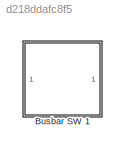
MODEL slx_d218ddafc8f5
KIND model
CONFIG AbsTol = auto
CONFIG EnableMultiTasking = off
CONFIG FixedStep = auto
CONFIG MaxStep = auto
CONFIG MinStep = auto
CONFIG RelTol = 1e-3
CONFIG SampleTimeConstraint = Unconstrained
CONFIG SolverName = VariableStepAuto
CONFIG StartTime = 0.0
CONFIG StopTime = 10.0
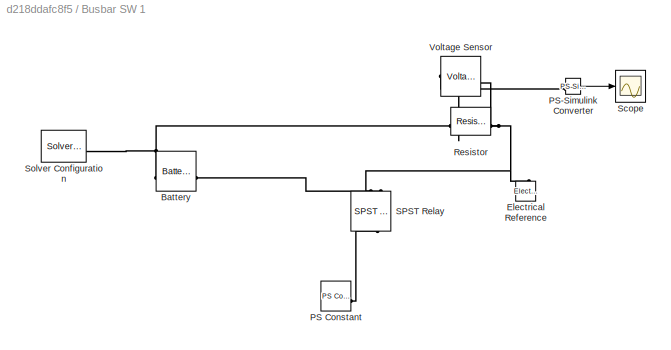
BLOCK [SubSystem] Busbar  SW 1
  NameLocation = top
BLOCK [Reference] Busbar  SW 1/Battery  REF=batteryecm_lib/Battery
  NameLocation = top
  SourceBlock = batteryecm_lib/Battery
  SourceType = Battery
BLOCK [Reference] Busbar  SW 1/Electrical Reference  REF=fl_lib/Electrical/Electrical Elements/Electrical Reference
  NameLocation = right
  SourceBlock = fl_lib/Electrical/Electrical Elements/Electrical Reference
  SourceType = Electrical Reference
BLOCK [Reference] Busbar  SW 1/PS Constant  REF=fl_lib/Physical Signals/Sources/PS Constant
  SourceBlock = fl_lib/Physical Signals/Sources/PS Constant
  SourceType = PS Constant
BLOCK [Reference] Busbar  SW 1/PS-Simulink Converter  REF=nesl_utility/PS-Simulink
Converter
  SourceBlock = nesl_utility/PS-Simulink\nConverter
  SourceType = PS-Simulink\nConverter
BLOCK [Reference] Busbar  SW 1/Resistor  REF=fl_lib/Electrical/Electrical Elements/Resistor
  SourceBlock = fl_lib/Electrical/Electrical Elements/Resistor
  SourceType = Resistor
BLOCK [Reference] Busbar  SW 1/SPST Relay  REF=ee_lib/Switches & Breakers/Relays/SPST Relay
  NameLocation = right
  SourceBlock = ee_lib/Switches & Breakers/Relays/SPST Relay
  SourceType = SPST Relay
BLOCK [Scope] Busbar  SW 1/Scope
  Floating = off
  NumInputPorts = 1
  ScopeSpecificationString = Simulink.scopes.TimeScopeBlockCfg('CurrentConfiguration', extmgr.ConfigurationSet(extmgr.Configuration('Core','General UI',true),extmgr.Configuration('Core','Source UI',true),extmgr.Configuration('Sources','WiredSimulink',true),extmgr.Configuration('Visuals','Time Domain',true,'SerializedDisplays',{struct('MinYLimReal','2.98671','MaxYLimReal','4.98671','YLabelReal','','MinYLimMag','2.98671','MaxYL...<+1339ch>
BLOCK [Reference] Busbar  SW 1/Solver Configuration  REF=nesl_utility/Solver
Configuration
  SourceBlock = nesl_utility/Solver\nConfiguration
  SourceType = Solver\nConfiguration
BLOCK [Reference] Busbar  SW 1/Voltage Sensor  REF=fl_lib/Electrical/Electrical Sensors/Voltage Sensor
  NameLocation = top
  SourceBlock = fl_lib/Electrical/Electrical Sensors/Voltage Sensor
  SourceType = Voltage Sensor
LINE Busbar  SW 1/PS-Simulink Converter:1 -> Busbar  SW 1/Scope:1
PNET net1: Busbar  SW 1/Battery:LConn1 -- Busbar  SW 1/Resistor:LConn1 -- Busbar  SW 1/Solver Configuration:RConn1 -- Busbar  SW 1/Voltage Sensor:LConn1
PLINE Busbar  SW 1/Battery:RConn1 -- Busbar  SW 1/SPST Relay:RConn1
PNET net2: Busbar  SW 1/Electrical Reference:LConn1 -- Busbar  SW 1/Resistor:RConn1 -- Busbar  SW 1/SPST Relay:RConn2 -- Busbar  SW 1/Voltage Sensor:RConn2
PLINE Busbar  SW 1/PS Constant:RConn1 -- Busbar  SW 1/SPST Relay:LConn1
PLINE Busbar  SW 1/PS-Simulink Converter:LConn1 -- Busbar  SW 1/Voltage Sensor:RConn1
note: PNET lines group multi-terminal physical nets as a canonical sorted terminal list (undirected conserving connections); 2-terminal nets keep the pairwise PLINE form
